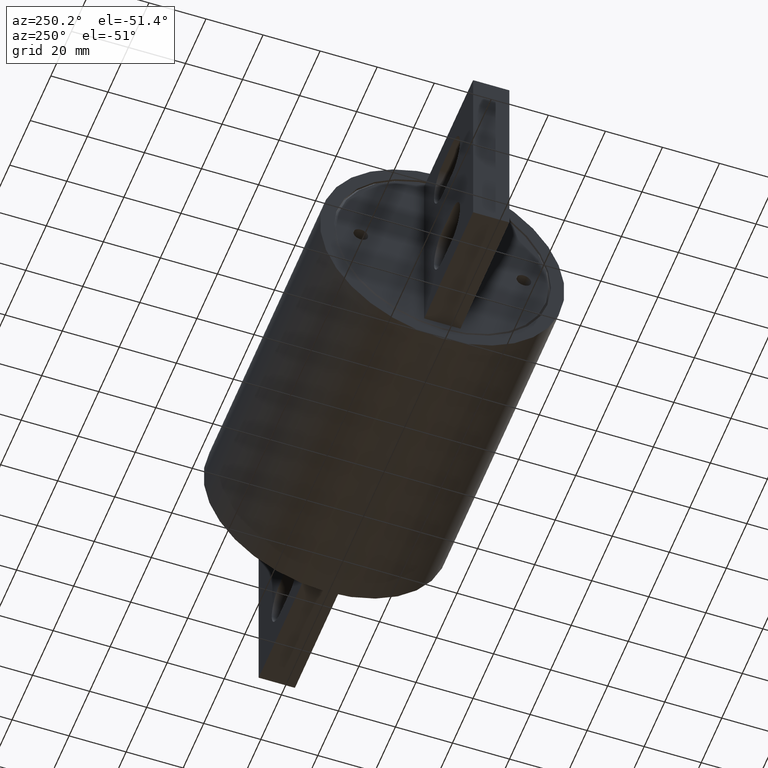
[diagram: clean part render]
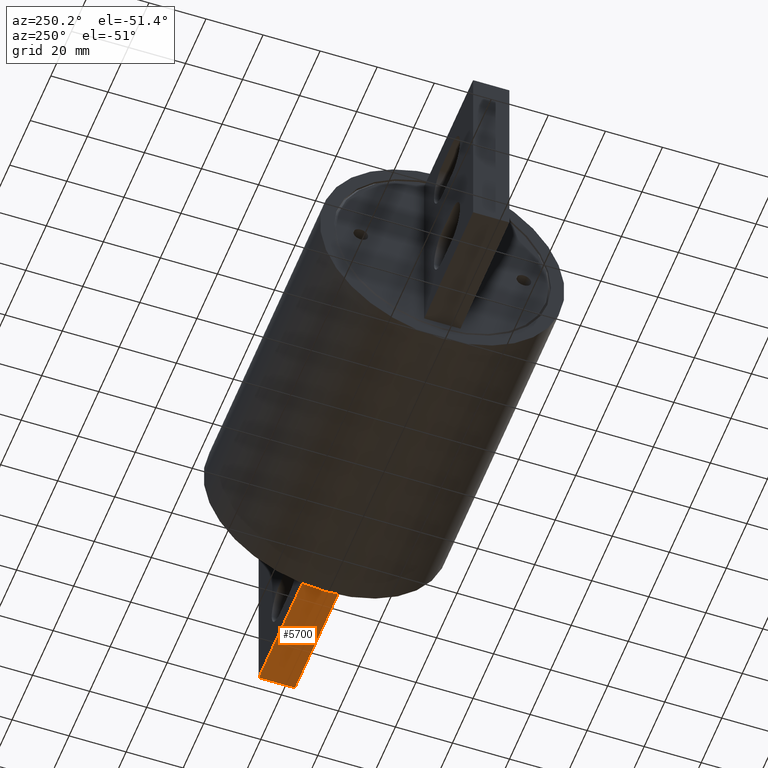
[diagram: same view with one face highlighted and labeled with its STEP entity id]
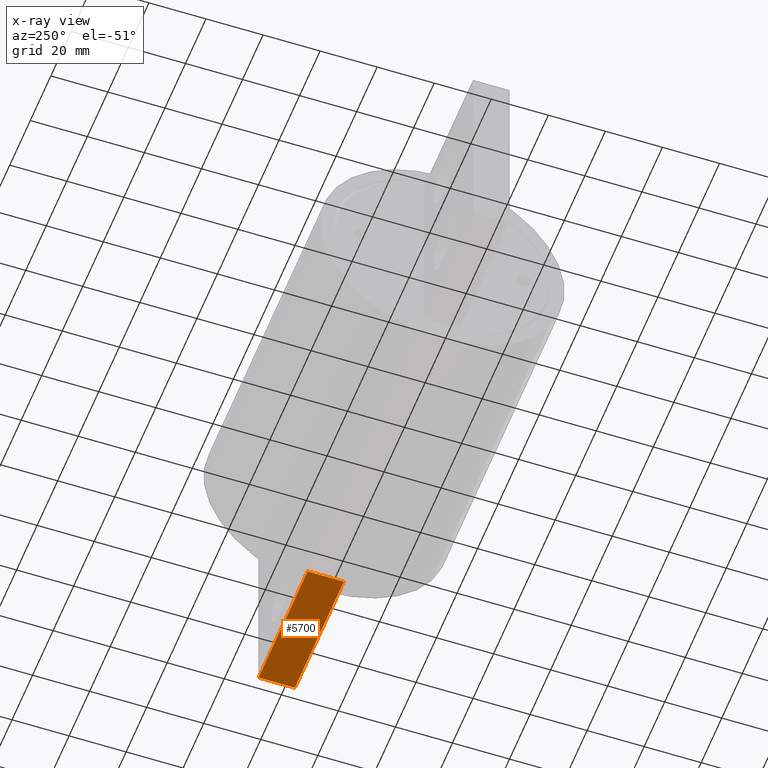
[diagram: x-ray of the same camera — body ghosted, the highlighted face saturated]
A machine part, auxiliary view. The second image highlights one B-rep face of the part: STEP entity #5700.
The next image is the same camera in x-ray: the body ghosted, the highlighted face saturated — about 0% of this face is hidden behind the body in this view.
In plain terms, the highlighted planar face has unit normal (0, 0, 1).
Its self-contained STEP definition (entity closure, byte-faithful):
#1330 = CARTESIAN_POINT ( 'NONE',  ( 4.109499999999997900, 0.2499999999999999200, -1.374999999999998700 ) ) ;
#1451 = CARTESIAN_POINT ( 'NONE',  ( 2.234499999999999700, 0.2499999999999999200, -1.374999999999998200 ) ) ;
#1596 = ORIENTED_EDGE ( 'NONE', *, *, #13837, .F. ) ;
#1687 = CARTESIAN_POINT ( 'NONE',  ( 2.234499999999999700, -0.2500000000000000600, -1.374999999999998200 ) ) ;
#1749 = CARTESIAN_POINT ( 'NONE',  ( 4.109499999999997900, -0.2500000000000000600, -1.374999999999998700 ) ) ;
#2183 = VECTOR ( 'NONE', #10118, 39.37007874015748100 ) ;
#2212 = CARTESIAN_POINT ( 'NONE',  ( 2.234499999999999700, -0.2500000000000000600, -1.374999999999998200 ) ) ;
#2500 = ORIENTED_EDGE ( 'NONE', *, *, #9309, .T. ) ;
#2584 = DIRECTION ( 'NONE',  ( 1.000000000000000000, 6.593177783157923600E-017, -2.353610636070945400E-016 ) ) ;
#2936 = DIRECTION ( 'NONE',  ( 1.000000000000000000, 6.593177783157923600E-017, -2.353610636070945400E-016 ) ) ;
#3273 = LINE ( 'NONE', #11479, #5217 ) ;
#3683 = EDGE_CURVE ( 'NONE', #13362, #4370, #4552, .T. ) ;
#4066 = AXIS2_PLACEMENT_3D ( 'NONE', #2212, #8058, #12780 ) ;
#4155 = CARTESIAN_POINT ( 'NONE',  ( 4.109499999999997900, -0.2500000000000000600, -1.374999999999998700 ) ) ;
#4370 = VERTEX_POINT ( 'NONE', #1330 ) ;
#4411 = VERTEX_POINT ( 'NONE', #4155 ) ;
#4552 = LINE ( 'NONE', #1451, #7121 ) ;
#4656 = EDGE_CURVE ( 'NONE', #4411, #4370, #7238, .T. ) ;
#4952 = VERTEX_POINT ( 'NONE', #1687 ) ;
#5217 = VECTOR ( 'NONE', #2936, 39.37007874015748100 ) ;
#5700 = ADVANCED_FACE ( 'NONE', ( #10483 ), #7519, .F. ) ;
#6159 = VECTOR ( 'NONE', #9420, 39.37007874015748100 ) ;
#6578 = EDGE_LOOP ( 'NONE', ( #10513, #9503, #1596, #2500 ) ) ;
#7121 = VECTOR ( 'NONE', #2584, 39.37007874015748100 ) ;
#7238 = LINE ( 'NONE', #1749, #2183 ) ;
#7519 = PLANE ( 'NONE',  #4066 ) ;
#8058 = DIRECTION ( 'NONE',  ( 2.353610636070945400E-016, 5.582070976144709000E-017, 1.000000000000000000 ) ) ;
#8453 = CARTESIAN_POINT ( 'NONE',  ( 2.234499999999999700, -0.2500000000000000600, -1.374999999999998200 ) ) ;
#9309 = EDGE_CURVE ( 'NONE', #4952, #13362, #11667, .T. ) ;
#9420 = DIRECTION ( 'NONE',  ( 8.856302872696733300E-017, 1.000000000000000000, -5.504681343597395100E-017 ) ) ;
#9503 = ORIENTED_EDGE ( 'NONE', *, *, #4656, .F. ) ;
#10118 = DIRECTION ( 'NONE',  ( 8.856302872696733300E-017, 1.000000000000000000, -5.504681343597395100E-017 ) ) ;
#10483 = FACE_OUTER_BOUND ( 'NONE', #6578, .T. ) ;
#10513 = ORIENTED_EDGE ( 'NONE', *, *, #3683, .T. ) ;
#11479 = CARTESIAN_POINT ( 'NONE',  ( 2.234499999999999700, -0.2500000000000000600, -1.374999999999998200 ) ) ;
#11667 = LINE ( 'NONE', #8453, #6159 ) ;
#12780 = DIRECTION ( 'NONE',  ( -1.000000000000000000, -6.593177783157923600E-017, 2.353610636070945400E-016 ) ) ;
#13362 = VERTEX_POINT ( 'NONE', #13620 ) ;
#13620 = CARTESIAN_POINT ( 'NONE',  ( 2.234499999999999700, 0.2499999999999999200, -1.374999999999998200 ) ) ;
#13837 = EDGE_CURVE ( 'NONE', #4952, #4411, #3273, .T. ) ;